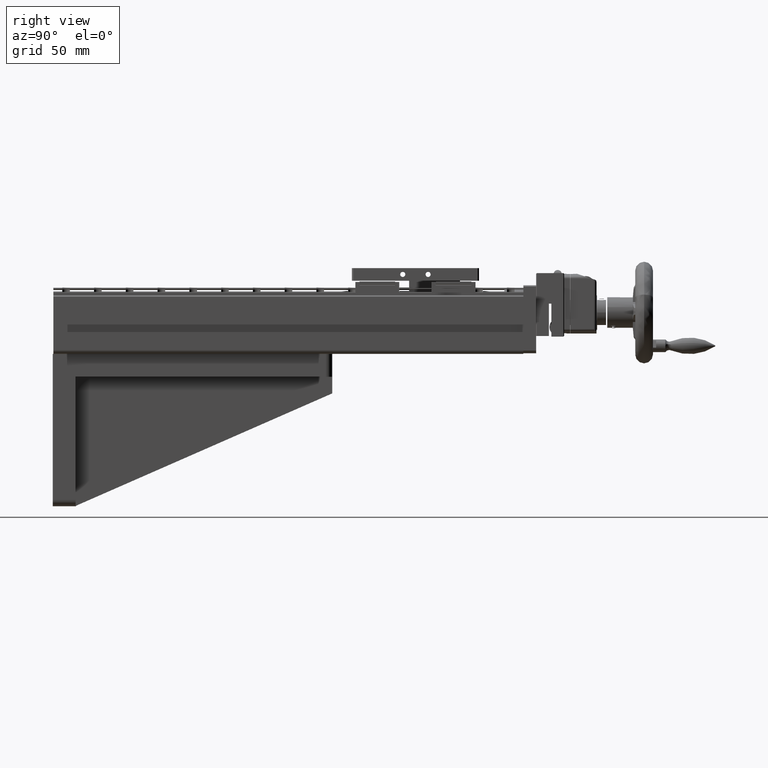
[diagram: clean part render]
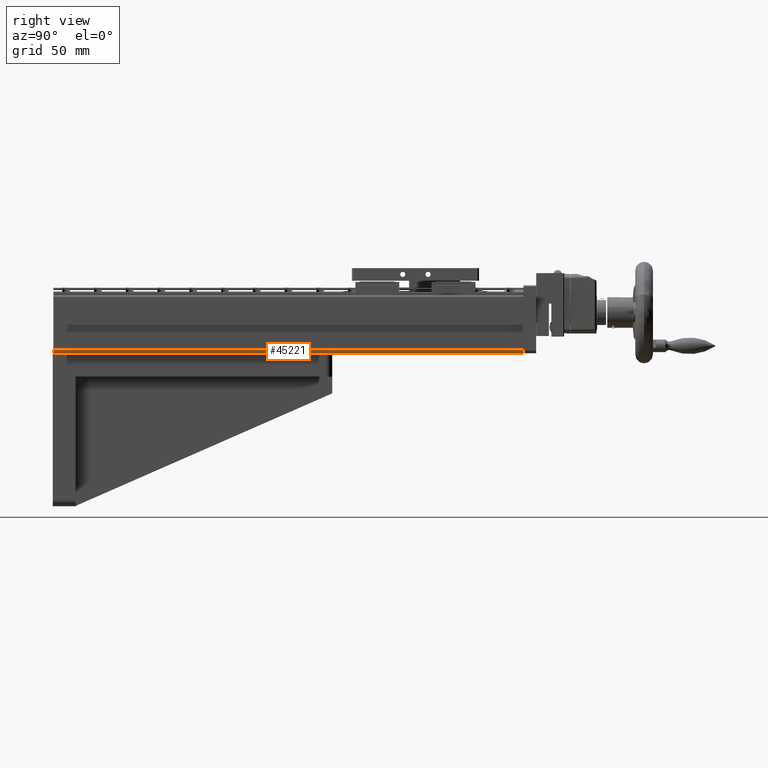
[diagram: same view with one face highlighted and labeled with its STEP entity id]
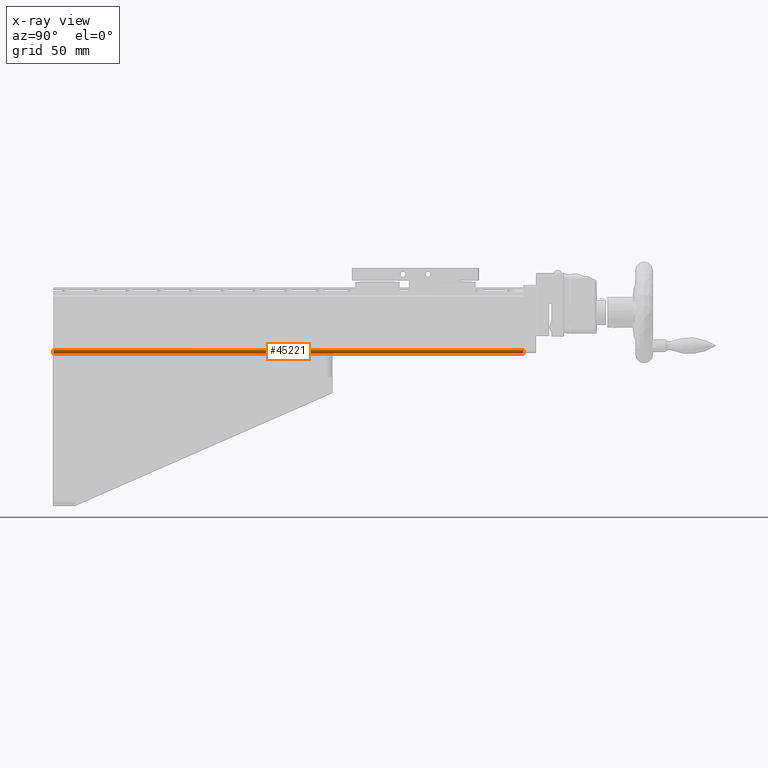
[diagram: x-ray of the same camera — body ghosted, the highlighted face saturated]
A machine part, right view. The second image highlights one B-rep face of the part: STEP entity #45221.
The next image is the same camera in x-ray: the body ghosted, the highlighted face saturated — about 0% of this face is hidden behind the body in this view.
In plain terms, the highlighted cylindrical surface (edge-blend (fillet) strip) has radius 3 mm, axis along (-0, -1, 0).
Its self-contained STEP definition (entity closure, byte-faithful):
#40 = VERTEX_POINT ( 'NONE', #19036 ) ;
#68 = CARTESIAN_POINT ( 'NONE',  ( 48.92025159052271022, -114.2134697455979904, 63.00000000000061107 ) ) ;
#1538 = FACE_OUTER_BOUND ( 'NONE', #41717, .T. ) ;
#3353 = DIRECTION ( 'NONE',  ( 9.251858538542792362E-15, 0.000000000000000000, 1.000000000000000000 ) ) ;
#4299 = LINE ( 'NONE', #8242, #20274 ) ;
#4725 = DIRECTION ( 'NONE',  ( -1.053011137364023571E-16, -1.000000000000000000, 3.821117613674764034E-17 ) ) ;
#7604 = AXIS2_PLACEMENT_3D ( 'NONE', #30682, #8958, #9203 ) ;
#8242 = CARTESIAN_POINT ( 'NONE',  ( 48.92025159052271022, 255.7865302544020096, 60.00000000000049738 ) ) ;
#8958 = DIRECTION ( 'NONE',  ( -1.053011137364023571E-16, -1.000000000000000000, 3.821117613674764034E-17 ) ) ;
#9203 = DIRECTION ( 'NONE',  ( 9.251858538542792362E-15, 0.000000000000000000, 1.000000000000000000 ) ) ;
#10084 = EDGE_CURVE ( 'NONE', #22088, #40, #19989, .T. ) ;
#10701 = ORIENTED_EDGE ( 'NONE', *, *, #20230, .F. ) ;
#13488 = CARTESIAN_POINT ( 'NONE',  ( 48.92025159052271022, 255.7865302544020096, 60.00000000000049738 ) ) ;
#18273 = DIRECTION ( 'NONE',  ( -1.053011137364023571E-16, -1.000000000000000000, 3.821117613674764034E-17 ) ) ;
#19036 = CARTESIAN_POINT ( 'NONE',  ( 51.92025159052276706, 255.7865302544020096, 63.00000000000061107 ) ) ;
#19363 = DIRECTION ( 'NONE',  ( 9.251858538542792362E-15, 0.000000000000000000, 1.000000000000000000 ) ) ;
#19989 = CIRCLE ( 'NONE', #28962, 3.000000000000058176 ) ;
#20230 = EDGE_CURVE ( 'NONE', #25728, #36986, #43280, .T. ) ;
#20274 = VECTOR ( 'NONE', #18273, 1000.000000000000000 ) ;
#21818 = LINE ( 'NONE', #28834, #30060 ) ;
#22088 = VERTEX_POINT ( 'NONE', #13488 ) ;
#25728 = VERTEX_POINT ( 'NONE', #45734 ) ;
#28834 = CARTESIAN_POINT ( 'NONE',  ( 51.92025159052276706, 255.7865302544020096, 63.00000000000061107 ) ) ;
#28962 = AXIS2_PLACEMENT_3D ( 'NONE', #36475, #4725, #19363 ) ;
#29752 = ORIENTED_EDGE ( 'NONE', *, *, #10084, .T. ) ;
#30060 = VECTOR ( 'NONE', #39418, 1000.000000000000000 ) ;
#30682 = CARTESIAN_POINT ( 'NONE',  ( 48.92025159052276706, 255.7865302544020096, 63.00000000000061107 ) ) ;
#32382 = EDGE_CURVE ( 'NONE', #40, #36986, #21818, .T. ) ;
#32404 = CARTESIAN_POINT ( 'NONE',  ( 51.92025159052271732, -114.2134697455979904, 63.00000000000061107 ) ) ;
#32762 = AXIS2_PLACEMENT_3D ( 'NONE', #68, #43095, #3353 ) ;
#36475 = CARTESIAN_POINT ( 'NONE',  ( 48.92025159052276706, 255.7865302544020096, 63.00000000000061107 ) ) ;
#36986 = VERTEX_POINT ( 'NONE', #32404 ) ;
#39418 = DIRECTION ( 'NONE',  ( -1.053011137364023571E-16, -1.000000000000000000, 3.821117613674764034E-17 ) ) ;
#39894 = ORIENTED_EDGE ( 'NONE', *, *, #43597, .F. ) ;
#41254 = ORIENTED_EDGE ( 'NONE', *, *, #32382, .T. ) ;
#41717 = EDGE_LOOP ( 'NONE', ( #10701, #39894, #29752, #41254 ) ) ;
#43095 = DIRECTION ( 'NONE',  ( -1.053011137364023571E-16, -1.000000000000000000, 3.821117613674764034E-17 ) ) ;
#43280 = CIRCLE ( 'NONE', #32762, 3.000000000000058176 ) ;
#43597 = EDGE_CURVE ( 'NONE', #22088, #25728, #4299, .T. ) ;
#44594 = CYLINDRICAL_SURFACE ( 'NONE', #7604, 3.000000000000058176 ) ;
#45221 = ADVANCED_FACE ( 'NONE', ( #1538 ), #44594, .T. ) ;
#45734 = CARTESIAN_POINT ( 'NONE',  ( 48.92025159052265337, -114.2134697455979904, 60.00000000000049738 ) ) ;